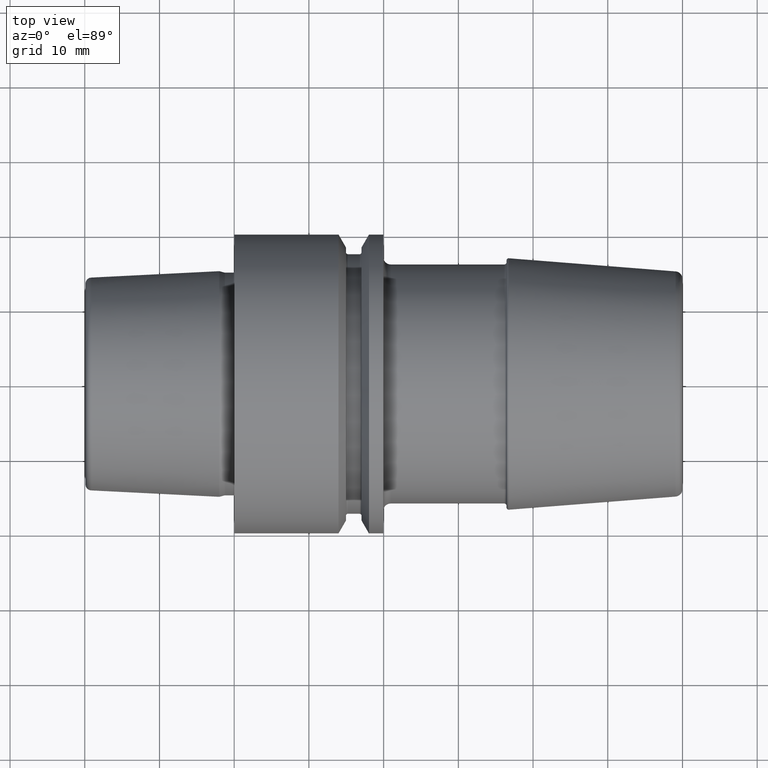
[diagram: clean part render]
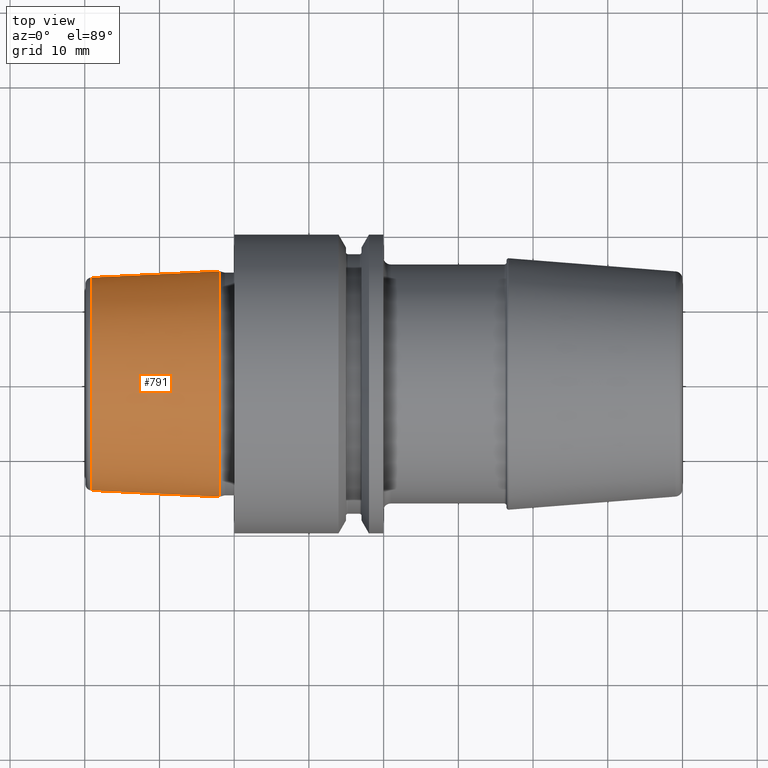
[diagram: same view with one face highlighted and labeled with its STEP entity id]
A machine part, top view. The second image highlights one B-rep face of the part: STEP entity #791.
In plain terms, the highlighted conical surface has half-angle 2.868 deg.
Its self-contained STEP definition (entity closure, byte-faithful):
#2=CARTESIAN_POINT('',(-2.E0,0.E0,0.E0));
#3=DIRECTION('',(1.E0,0.E0,0.E0));
#4=DIRECTION('',(0.E0,1.E0,0.E0));
#5=AXIS2_PLACEMENT_3D('',#2,#3,#4);
#30=DIRECTION('',(-9.987473526255E-1,-5.003724236654E-2,0.E0));
#31=VECTOR('',#30,1.716152713580E1);
#32=CARTESIAN_POINT('',(-2.E0,1.51037E1,0.E0));
#33=LINE('',#32,#31);
#34=DIRECTION('',(-9.987473526255E-1,5.003724236654E-2,0.E0));
#35=VECTOR('',#34,1.716152713580E1);
#36=CARTESIAN_POINT('',(-2.E0,-1.51037E1,0.E0));
#37=LINE('',#36,#35);
#53=CARTESIAN_POINT('',(-1.914002979389E1,0.E0,0.E0));
#54=DIRECTION('',(1.E0,0.E0,0.E0));
#55=DIRECTION('',(0.E0,1.E0,0.E0));
#56=AXIS2_PLACEMENT_3D('',#53,#54,#55);
#644=CARTESIAN_POINT('',(-2.E0,1.51037E1,0.E0));
#645=CARTESIAN_POINT('',(-2.E0,-1.51037E1,0.E0));
#646=VERTEX_POINT('',#644);
#647=VERTEX_POINT('',#645);
#648=CARTESIAN_POINT('',(-1.914002979389E1,1.424498450733E1,0.E0));
#649=VERTEX_POINT('',#648);
#650=CARTESIAN_POINT('',(-1.914002979389E1,-1.424498450733E1,0.E0));
#651=VERTEX_POINT('',#650);
#776=CARTESIAN_POINT('',(-1.057001489695E1,0.E0,0.E0));
#777=DIRECTION('',(1.E0,0.E0,0.E0));
#778=DIRECTION('',(0.E0,-1.E0,0.E0));
#779=AXIS2_PLACEMENT_3D('',#776,#777,#778);
#780=CONICAL_SURFACE('',#779,1.467434225366E1,2.868120487315E0);
#782=ORIENTED_EDGE('',*,*,#781,.T.);
#784=ORIENTED_EDGE('',*,*,#783,.T.);
#786=ORIENTED_EDGE('',*,*,#785,.F.);
#788=ORIENTED_EDGE('',*,*,#787,.F.);
#789=EDGE_LOOP('',(#782,#784,#786,#788));
#790=FACE_OUTER_BOUND('',#789,.F.);
#791=ADVANCED_FACE('',(#790),#780,.T.);
#6=CIRCLE('',#5,1.51037E1);
#57=CIRCLE('',#56,1.424498450733E1);
#781=EDGE_CURVE('',#646,#647,#6,.T.);
#783=EDGE_CURVE('',#647,#651,#37,.T.);
#785=EDGE_CURVE('',#649,#651,#57,.T.);
#787=EDGE_CURVE('',#646,#649,#33,.T.);